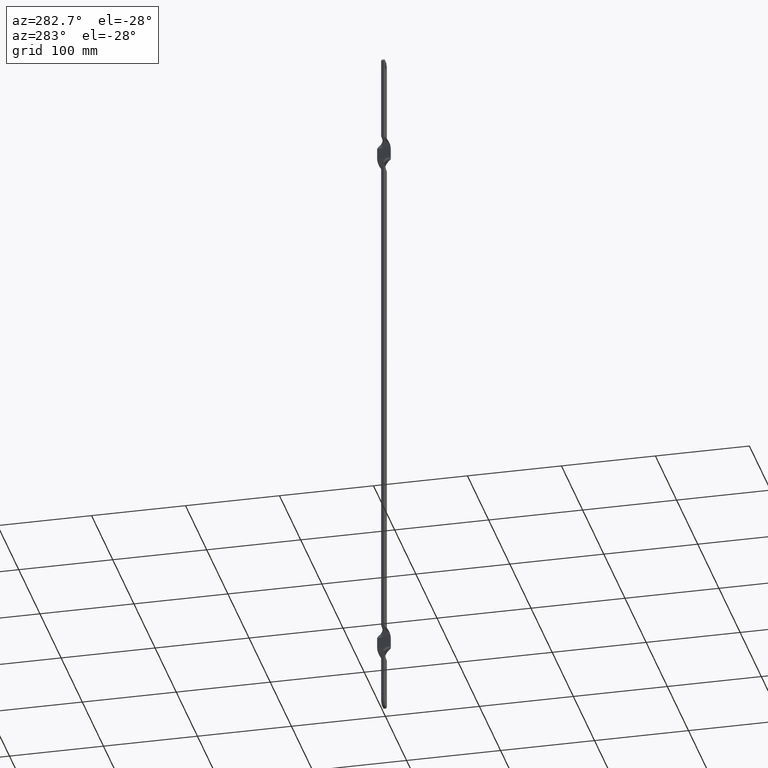
[diagram: clean part render]
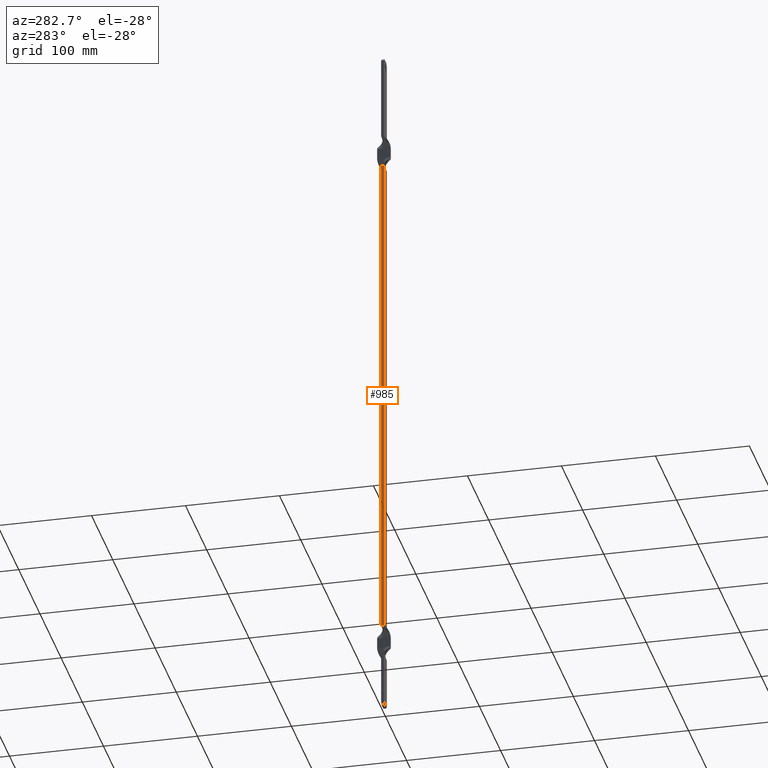
[diagram: same view with one face highlighted and labeled with its STEP entity id]
A machine part, auxiliary view. The second image highlights one B-rep face of the part: STEP entity #985.
In plain terms, the highlighted face is a freeform B-spline surface patch.
Its self-contained STEP definition (entity closure, byte-faithful):
#571=CARTESIAN_POINT('',(-7.000000000000110,-5.681219E-014,632.500000000000000));
#572=VERTEX_POINT('',#571);
#573=CARTESIAN_POINT('',(-7.000000000000110,3.000000142492295,632.500000000000000));
#574=VERTEX_POINT('',#573);
#575=CARTESIAN_POINT('',(-7.000000000000110,-5.681219E-014,632.500000000000000));
#576=CARTESIAN_POINT('',(-7.000000000000110,3.000000142492295,632.500000000000000));
#577=QUASI_UNIFORM_CURVE('',1,(#575,#576),.UNSPECIFIED.,.F.,.U.);
#578=EDGE_CURVE('',#572,#574,#577,.T.);
#903=CARTESIAN_POINT('',(-7.000000000000110,-5.684342E-014,92.500000000000000));
#904=VERTEX_POINT('',#903);
#918=CARTESIAN_POINT('',(-7.000000000000110,-5.681219E-014,632.500000000000000));
#919=CARTESIAN_POINT('',(-7.000000000000110,-5.684342E-014,92.500000000000000));
#920=QUASI_UNIFORM_CURVE('',1,(#918,#919),.UNSPECIFIED.,.F.,.U.);
#921=EDGE_CURVE('',#572,#904,#920,.T.);
#953=CARTESIAN_POINT('',(-7.000000000000110,3.000000142492295,92.500000000001094));
#954=VERTEX_POINT('',#953);
#960=CARTESIAN_POINT('',(-7.000000000000110,3.000000142492295,632.500000000000000));
#961=CARTESIAN_POINT('',(-7.000000000000110,3.000000142492295,92.500000000001094));
#962=QUASI_UNIFORM_CURVE('',1,(#960,#961),.UNSPECIFIED.,.F.,.U.);
#963=EDGE_CURVE('',#574,#954,#962,.T.);
#970=CARTESIAN_POINT('',(-7.000000000000110,-0.149850001302967,65.527001046624775));
#971=CARTESIAN_POINT('',(-7.000000000000110,-0.149850001302967,659.473013437303850));
#972=CARTESIAN_POINT('',(-7.000000000000110,3.149850224261480,65.527001046624775));
#973=CARTESIAN_POINT('',(-7.000000000000110,3.149850224261480,659.473013437303850));
#974=B_SPLINE_SURFACE_WITH_KNOTS('',1,1,((#970,#972),(#971,#973)),.UNSPECIFIED.,.F.,.F.,.U.,(2,2),(2,2),(0.0,593.946012390679020),(0.0,3.299700225564448),.UNSPECIFIED.);
#975=CARTESIAN_POINT('',(-7.000000000000110,3.000000142492295,92.500000000001094));
#976=CARTESIAN_POINT('',(-7.000000000000110,-5.684342E-014,92.500000000000000));
#977=QUASI_UNIFORM_CURVE('',1,(#975,#976),.UNSPECIFIED.,.F.,.U.);
#978=EDGE_CURVE('',#954,#904,#977,.T.);
#979=ORIENTED_EDGE('',*,*,#978,.T.);
#980=ORIENTED_EDGE('',*,*,#921,.F.);
#981=ORIENTED_EDGE('',*,*,#578,.T.);
#982=ORIENTED_EDGE('',*,*,#963,.T.);
#983=EDGE_LOOP('',(#979,#980,#981,#982));
#984=FACE_OUTER_BOUND('',#983,.T.);
#985=ADVANCED_FACE('',(#984),#974,.T.);